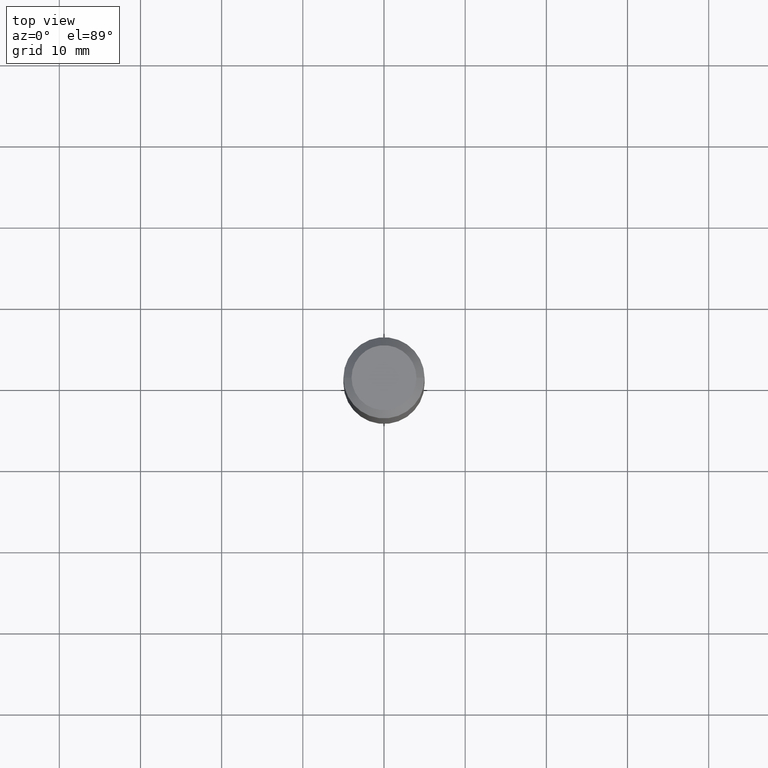
[diagram: clean part render]
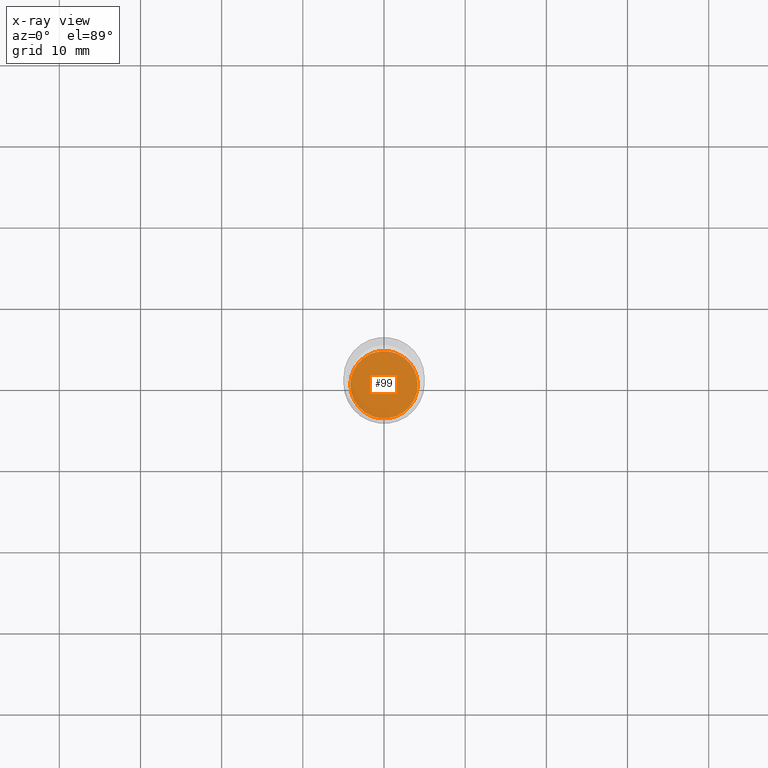
[diagram: x-ray — body ghosted, one internal face saturated and labeled with its STEP entity id]
A machine part, top view, then the same camera in x-ray: the body is ghosted and one INTERNAL B-rep face — a face not visible from any outside direction — is saturated and labeled: STEP entity #99.
In plain terms, the highlighted planar face has unit normal (-0, 0, 1).
Its self-contained STEP definition (entity closure, byte-faithful):
#4 = VERTEX_POINT ( 'NONE', #327 ) ;
#17 = CARTESIAN_POINT ( 'NONE',  ( 4.845940986336466171E-29, -6.918719421051576678E-15, -1.981599999999999806 ) ) ;
#36 = FACE_OUTER_BOUND ( 'NONE', #340, .T. ) ;
#50 = VERTEX_POINT ( 'NONE', #69 ) ;
#56 = EDGE_CURVE ( 'NONE', #50, #4, #110, .T. ) ;
#69 = CARTESIAN_POINT ( 'NONE',  ( 0.1635500000000000009, -8.060782966987165334E-15, -1.981599999999999806 ) ) ;
#73 = DIRECTION ( 'NONE',  ( 1.000000000000000000, -6.982962677686265922E-15, 4.876176775795935793E-29 ) ) ;
#79 = CIRCLE ( 'NONE', #437, 0.1635500000000000009 ) ;
#99 = ADVANCED_FACE ( 'NONE', ( #36 ), #291, .F. ) ;
#110 = CIRCLE ( 'NONE', #139, 0.1635500000000000009 ) ;
#139 = AXIS2_PLACEMENT_3D ( 'NONE', #410, #414, #457 ) ;
#176 = EDGE_CURVE ( 'NONE', #4, #50, #79, .T. ) ;
#255 = DIRECTION ( 'NONE',  ( -2.438088387897960049E-29, 3.491481338843145188E-15, 1.000000000000000000 ) ) ;
#282 = AXIS2_PLACEMENT_3D ( 'NONE', #375, #255, #73 ) ;
#291 = PLANE ( 'NONE',  #282 ) ;
#327 = CARTESIAN_POINT ( 'NONE',  ( -0.1635500000000000009, -5.753977549541821814E-15, -1.981599999999999806 ) ) ;
#340 = EDGE_LOOP ( 'NONE', ( #482, #377 ) ) ;
#375 = CARTESIAN_POINT ( 'NONE',  ( 4.845940986336466171E-29, -6.918719421051576678E-15, -1.981599999999999806 ) ) ;
#377 = ORIENTED_EDGE ( 'NONE', *, *, #176, .F. ) ;
#410 = CARTESIAN_POINT ( 'NONE',  ( 4.845940986336466171E-29, -6.918719421051576678E-15, -1.981599999999999806 ) ) ;
#414 = DIRECTION ( 'NONE',  ( -2.445468806185136597E-29, 3.491481338843145583E-15, 1.000000000000000000 ) ) ;
#416 = DIRECTION ( 'NONE',  ( -2.445468806185136597E-29, 3.491481338843145583E-15, 1.000000000000000000 ) ) ;
#428 = DIRECTION ( 'NONE',  ( 1.000000000000000000, -6.982962677686265922E-15, 0.000000000000000000 ) ) ;
#437 = AXIS2_PLACEMENT_3D ( 'NONE', #17, #416, #428 ) ;
#457 = DIRECTION ( 'NONE',  ( 1.000000000000000000, -6.982962677686265922E-15, 0.000000000000000000 ) ) ;
#482 = ORIENTED_EDGE ( 'NONE', *, *, #56, .F. ) ;